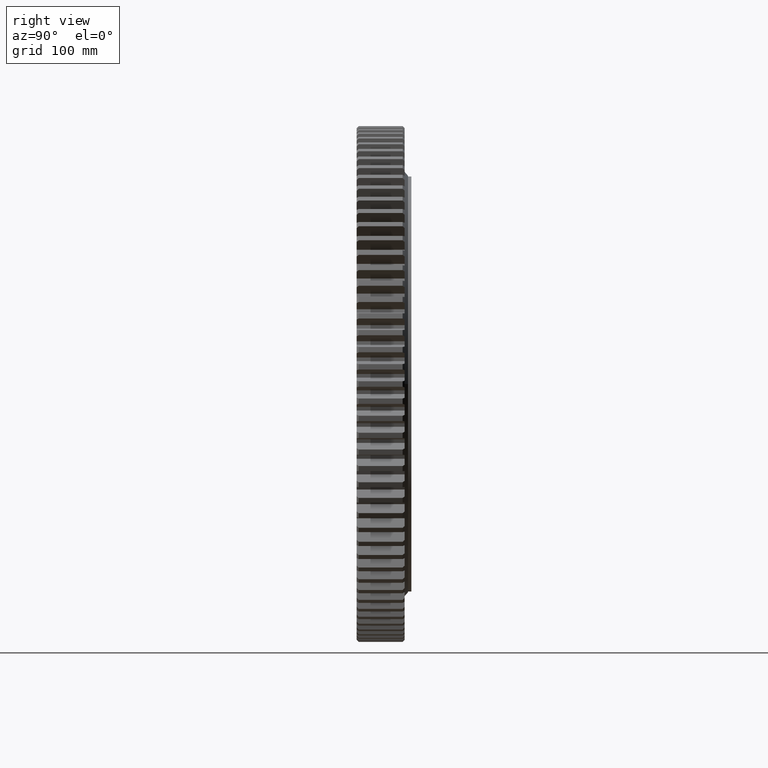
[diagram: clean part render]
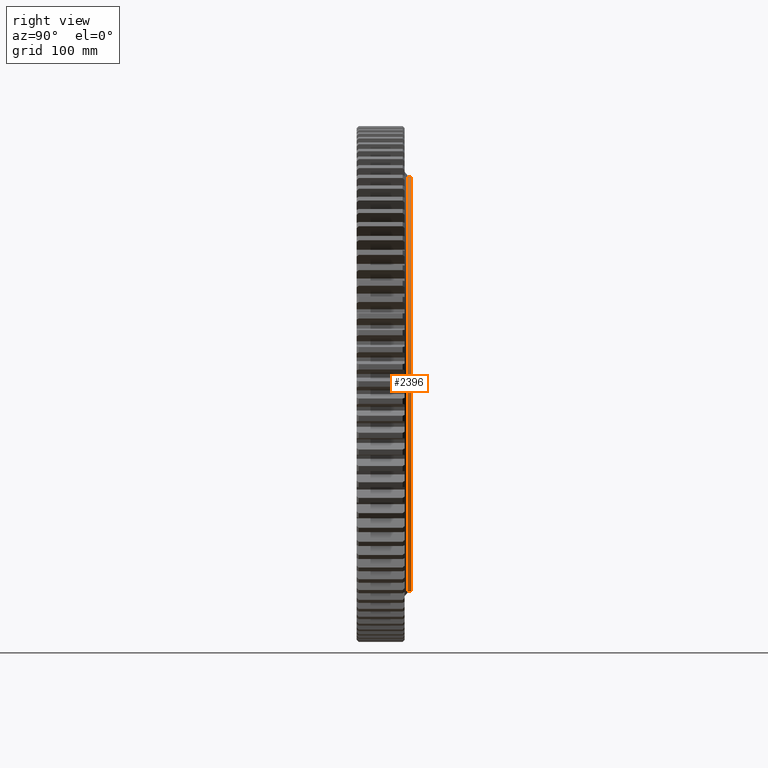
[diagram: same view with one face highlighted and labeled with its STEP entity id]
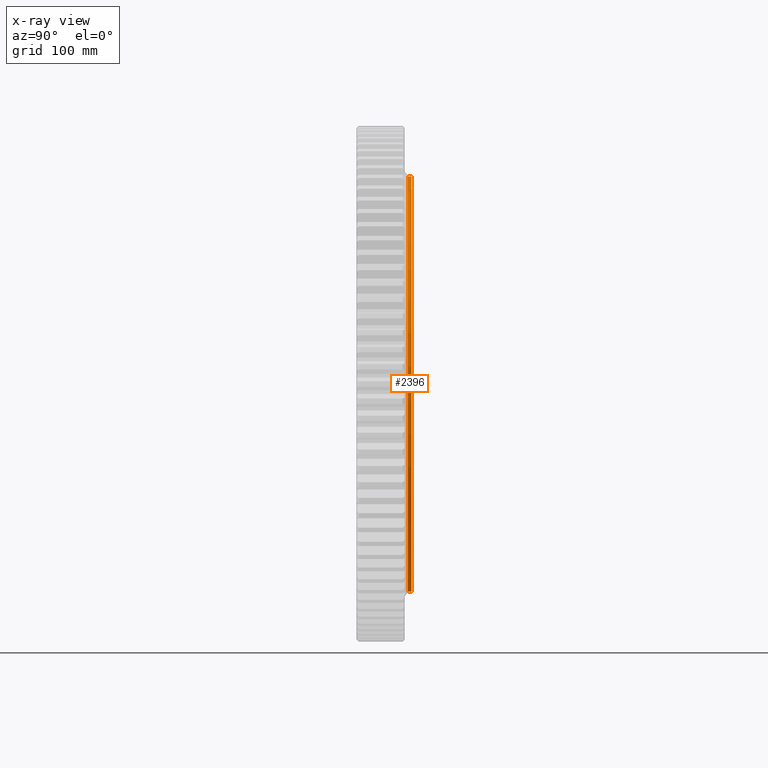
[diagram: x-ray of the same camera — body ghosted, the highlighted face saturated]
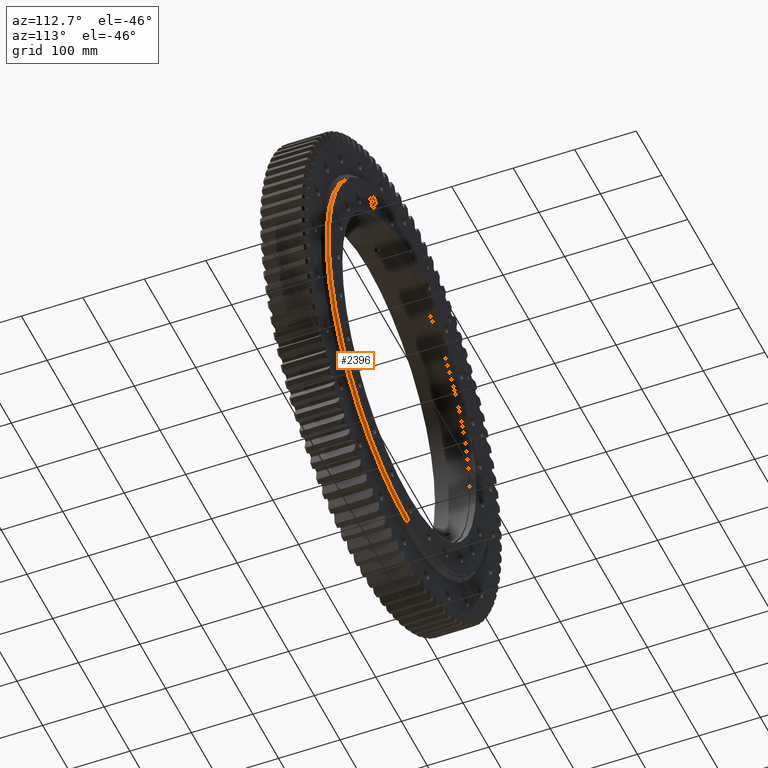
[diagram: same view with one face highlighted and labeled with its STEP entity id]
A machine part, right view. The second image highlights one B-rep face of the part: STEP entity #2396.
The next image is the same camera in x-ray: the body ghosted, the highlighted face saturated — about 0% of this face is hidden behind the body in this view.
A second angle (auxiliary view) of the same face is appended — the face is thin or edge-on in the first view.
In plain terms, the highlighted cylindrical surface (partial cylindrical patch) has radius 311.413 mm, axis along (-0, 1, -0).
Its self-contained STEP definition (entity closure, byte-faithful):
#128 = CARTESIAN_POINT ( 'NONE',  ( 0.0000000000000000000, 37.99999999999997900, 311.4125000000000200 ) ) ;
#2010 = CARTESIAN_POINT ( 'NONE',  ( 3.813703213394751500E-014, 31.02910628019323600, -311.4125000000000200 ) ) ;
#2392 = AXIS2_PLACEMENT_3D ( 'NONE', #23933, #12238, #2445 ) ;
#2396 = ADVANCED_FACE ( 'NONE', ( #13875 ), #23659, .T. ) ;
#2445 = DIRECTION ( 'NONE',  ( 0.0000000000000000000, 2.228200185897235400E-017, 1.000000000000000000 ) ) ;
#3187 = VERTEX_POINT ( 'NONE', #8997 ) ;
#5144 = VERTEX_POINT ( 'NONE', #22590 ) ;
#5409 = DIRECTION ( 'NONE',  ( -0.0000000000000000000, 1.000000000000000000, -2.727064569436389700E-017 ) ) ;
#5572 = EDGE_CURVE ( 'NONE', #10264, #5144, #5893, .T. ) ;
#5893 = CIRCLE ( 'NONE', #18342, 311.4125000000000200 ) ;
#6054 = DIRECTION ( 'NONE',  ( -0.0000000000000000000, 1.000000000000000000, -2.727064569436389700E-017 ) ) ;
#7536 = EDGE_LOOP ( 'NONE', ( #9740, #23640, #19408, #9048 ) ) ;
#8997 = CARTESIAN_POINT ( 'NONE',  ( 0.0000000000000000000, 33.05000000000000400, 311.4125000000000200 ) ) ;
#9048 = ORIENTED_EDGE ( 'NONE', *, *, #13070, .F. ) ;
#9740 = ORIENTED_EDGE ( 'NONE', *, *, #20263, .T. ) ;
#10107 = CARTESIAN_POINT ( 'NONE',  ( 0.0000000000000000000, 33.04999999999994700, -3.248887150915959000E-015 ) ) ;
#10264 = VERTEX_POINT ( 'NONE', #128 ) ;
#10744 = VECTOR ( 'NONE', #5409, 1000.000000000000000 ) ;
#11843 = AXIS2_PLACEMENT_3D ( 'NONE', #10107, #23751, #12070 ) ;
#12070 = DIRECTION ( 'NONE',  ( 0.0000000000000000000, 1.782560148717788300E-016, 1.000000000000000000 ) ) ;
#12238 = DIRECTION ( 'NONE',  ( -0.0000000000000000000, 1.000000000000000000, -2.727064569436389700E-017 ) ) ;
#13070 = EDGE_CURVE ( 'NONE', #3187, #10264, #15914, .T. ) ;
#13566 = CARTESIAN_POINT ( 'NONE',  ( 3.813703213394751500E-014, 33.04999999999989100, -311.4125000000000200 ) ) ;
#13875 = FACE_OUTER_BOUND ( 'NONE', #7536, .T. ) ;
#14660 = VECTOR ( 'NONE', #19578, 1000.000000000000000 ) ;
#15013 = EDGE_CURVE ( 'NONE', #22886, #5144, #19858, .T. ) ;
#15914 = LINE ( 'NONE', #24848, #10744 ) ;
#17728 = CARTESIAN_POINT ( 'NONE',  ( 0.0000000000000000000, 37.99999999999997200, -1.882468299965738500E-015 ) ) ;
#18342 = AXIS2_PLACEMENT_3D ( 'NONE', #17728, #6054, #19703 ) ;
#19408 = ORIENTED_EDGE ( 'NONE', *, *, #5572, .F. ) ;
#19578 = DIRECTION ( 'NONE',  ( -0.0000000000000000000, 1.000000000000000000, -2.727064569436389700E-017 ) ) ;
#19703 = DIRECTION ( 'NONE',  ( 0.0000000000000000000, 2.228200185897235400E-017, 1.000000000000000000 ) ) ;
#19858 = LINE ( 'NONE', #2010, #14660 ) ;
#20263 = EDGE_CURVE ( 'NONE', #3187, #22886, #23334, .T. ) ;
#22590 = CARTESIAN_POINT ( 'NONE',  ( 3.813703213394751500E-014, 37.99999999999996400, -311.4125000000000200 ) ) ;
#22886 = VERTEX_POINT ( 'NONE', #13566 ) ;
#23334 = CIRCLE ( 'NONE', #11843, 311.4125000000000200 ) ;
#23640 = ORIENTED_EDGE ( 'NONE', *, *, #15013, .T. ) ;
#23659 = CYLINDRICAL_SURFACE ( 'NONE', #2392, 311.4125000000000200 ) ;
#23751 = DIRECTION ( 'NONE',  ( -0.0000000000000000000, 1.000000000000000000, -1.770339596030613800E-016 ) ) ;
#23933 = CARTESIAN_POINT ( 'NONE',  ( 0.0000000000000000000, 31.02910628019324300, -1.692367527159823000E-015 ) ) ;
#24848 = CARTESIAN_POINT ( 'NONE',  ( 0.0000000000000000000, 31.02910628019325000, 311.4125000000000200 ) ) ;